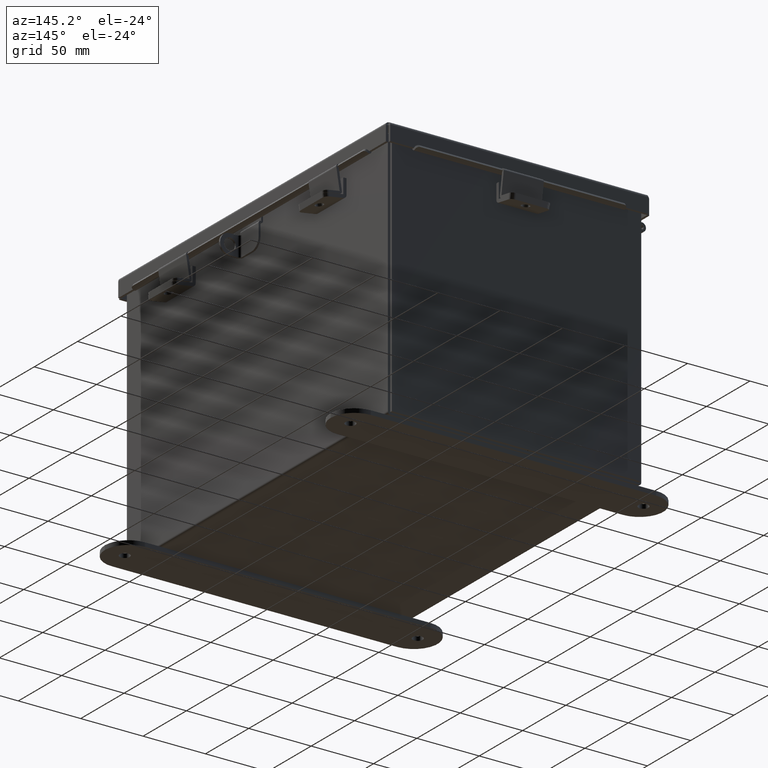
[diagram: clean part render]
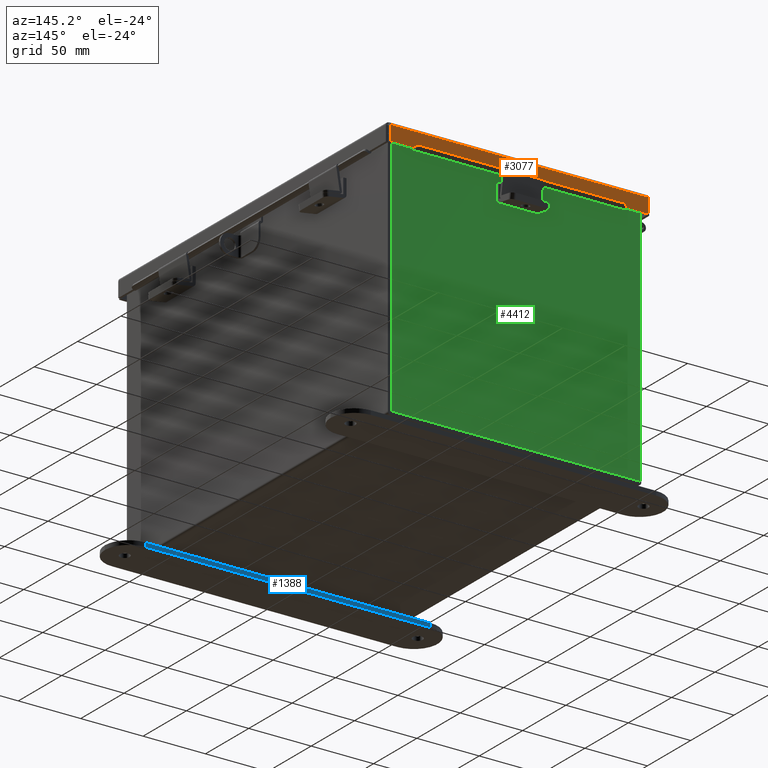
[diagram: same view with three faces highlighted in distinct colors, each labeled with its STEP entity id]
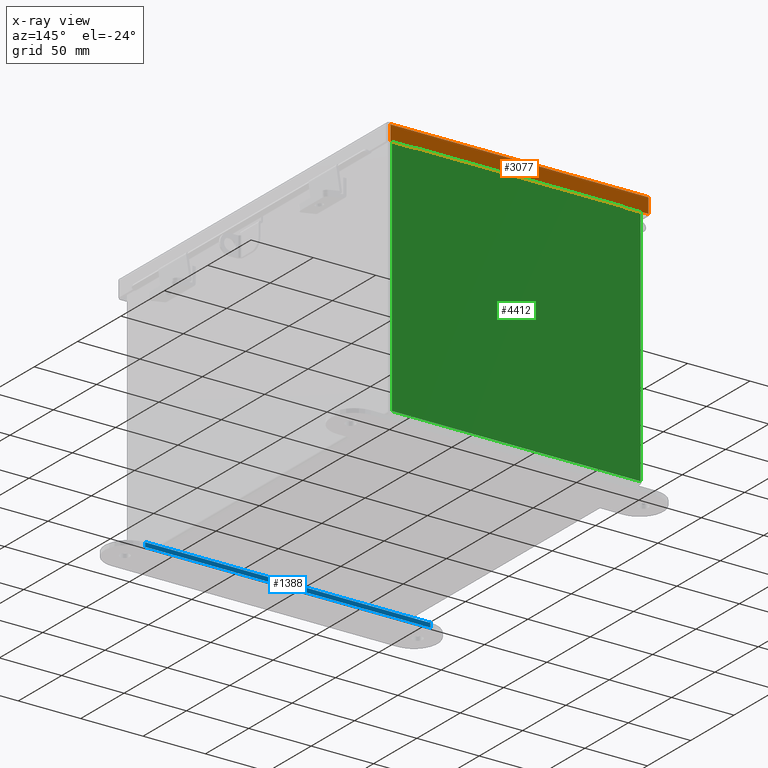
[diagram: x-ray of the same camera — body ghosted, the three highlighted faces saturated]
A machine part, auxiliary view with three faces highlighted in distinct colors.
The next image is the same camera in x-ray (body ghosted, the three faces saturated) — at least one of them is partly hidden behind the body in this view.
Their STEP definitions:

[orange] entity #3077 — the highlighted planar face has unit normal (-0, -1, -0).
#496 = PLANE ( 'NONE',  #4504 ) ;
#1160 = CARTESIAN_POINT ( 'NONE',  ( 4.074478932188155200, 6.156249999999999100, 0.01300000000000010700 ) ) ;
#1179 = VERTEX_POINT ( 'NONE', #1160 ) ;
#1205 = CARTESIAN_POINT ( 'NONE',  ( -3.324478932188148100, 6.156250000000000900, 0.4717115427318789300 ) ) ;
#1327 = CARTESIAN_POINT ( 'NONE',  ( 3.324478932188144500, 6.156250000000000900, 0.4873000000000000100 ) ) ;
#1481 = CARTESIAN_POINT ( 'NONE',  ( 3.324478932188144500, 6.156250000000002700, 0.4872999999999989000 ) ) ;
#1525 = CARTESIAN_POINT ( 'NONE',  ( 1.493979371535143800E-017, 6.156250000000000900, 0.4873000000000000100 ) ) ;
#1771 = LINE ( 'NONE', #12547, #14384 ) ;
#1856 = EDGE_CURVE ( 'NONE', #13005, #8044, #10748, .T. ) ;
#1928 = FACE_OUTER_BOUND ( 'NONE', #8433, .T. ) ;
#1987 = CARTESIAN_POINT ( 'NONE',  ( 4.074478932188154300, 6.156249999999999100, 0.0000000000000000000 ) ) ;
#2656 = EDGE_CURVE ( 'NONE', #2686, #1179, #13797, .T. ) ;
#2686 = VERTEX_POINT ( 'NONE', #5080 ) ;
#2876 = ORIENTED_EDGE ( 'NONE', *, *, #7188, .F. ) ;
#3077 = ADVANCED_FACE ( 'NONE', ( #1928 ), #496, .F. ) ;
#3511 = VECTOR ( 'NONE', #4077, 39.37007874015748100 ) ;
#3817 = DIRECTION ( 'NONE',  ( 1.000000000000000000, -1.078082683966195600E-030, 1.183291357831513000E-030 ) ) ;
#3977 = ORIENTED_EDGE ( 'NONE', *, *, #1856, .F. ) ;
#4077 = DIRECTION ( 'NONE',  ( 1.000000000000000000, -1.054499497617235000E-030, 8.216084191472640000E-018 ) ) ;
#4202 = DIRECTION ( 'NONE',  ( 1.075799537493479900E-030, -1.000000000000000000, 4.484872552701411700E-015 ) ) ;
#4442 = VECTOR ( 'NONE', #3817, 39.37007874015748100 ) ;
#4504 = AXIS2_PLACEMENT_3D ( 'NONE', #6545, #4202, #12716 ) ;
#5080 = CARTESIAN_POINT ( 'NONE',  ( -4.074478932188156900, 6.156249999999999100, 0.01300000000000010700 ) ) ;
#5225 = VECTOR ( 'NONE', #13872, 39.37007874015748100 ) ;
#5599 = CARTESIAN_POINT ( 'NONE',  ( -4.074478932188157800, 6.156250000000000900, 0.4873000000000087800 ) ) ;
#5863 = DIRECTION ( 'NONE',  ( -1.000000000000000000, 1.053430780678039200E-030, -1.183291357831513000E-030 ) ) ;
#6019 = ORIENTED_EDGE ( 'NONE', *, *, #13304, .F. ) ;
#6071 = VECTOR ( 'NONE', #8073, 39.37007874015748100 ) ;
#6359 = EDGE_CURVE ( 'NONE', #10430, #15663, #7453, .T. ) ;
#6372 = LINE ( 'NONE', #1481, #12483 ) ;
#6470 = DIRECTION ( 'NONE',  ( -1.183291357831513000E-030, -7.009925220120719800E-014, 1.000000000000000000 ) ) ;
#6545 = CARTESIAN_POINT ( 'NONE',  ( 1.920830620545185200E-017, 6.156249999999999100, -2.731847993664263300E-014 ) ) ;
#6571 = CARTESIAN_POINT ( 'NONE',  ( 3.324478932188144500, 6.156250000000000900, 0.4717115427318789300 ) ) ;
#7188 = EDGE_CURVE ( 'NONE', #1179, #15663, #15815, .T. ) ;
#7453 = LINE ( 'NONE', #1525, #11079 ) ;
#8044 = VERTEX_POINT ( 'NONE', #1205 ) ;
#8073 = DIRECTION ( 'NONE',  ( -1.183291357831513000E-030, 4.484872552701411700E-015, 1.000000000000000000 ) ) ;
#8324 = CARTESIAN_POINT ( 'NONE',  ( 3.324478932188144500, 6.156250000000003600, 0.4717115427318789300 ) ) ;
#8433 = EDGE_LOOP ( 'NONE', ( #11827, #12604, #2876, #11591, #11616, #9327, #6019, #3977 ) ) ;
#8472 = LINE ( 'NONE', #9036, #5225 ) ;
#9036 = CARTESIAN_POINT ( 'NONE',  ( -4.074478932188157800, 6.156249999999999100, -2.731847993664263300E-014 ) ) ;
#9327 = ORIENTED_EDGE ( 'NONE', *, *, #12916, .T. ) ;
#9884 = CARTESIAN_POINT ( 'NONE',  ( 4.156250000000018700, 6.156249999999999100, 0.01300000000000010700 ) ) ;
#10052 = DIRECTION ( 'NONE',  ( 1.000000000000000000, -1.054499497617235000E-030, 8.216084191472640000E-018 ) ) ;
#10430 = VERTEX_POINT ( 'NONE', #1327 ) ;
#10510 = EDGE_CURVE ( 'NONE', #10430, #13005, #6372, .T. ) ;
#10748 = LINE ( 'NONE', #8324, #13621 ) ;
#11046 = CARTESIAN_POINT ( 'NONE',  ( -3.324478932188148500, 6.156250000000000900, 0.4873000000000000100 ) ) ;
#11079 = VECTOR ( 'NONE', #10052, 39.37007874015748100 ) ;
#11326 = CARTESIAN_POINT ( 'NONE',  ( 1.493979371535143800E-017, 6.156250000000000900, 0.4873000000000000100 ) ) ;
#11591 = ORIENTED_EDGE ( 'NONE', *, *, #2656, .F. ) ;
#11616 = ORIENTED_EDGE ( 'NONE', *, *, #13026, .T. ) ;
#11827 = ORIENTED_EDGE ( 'NONE', *, *, #10510, .F. ) ;
#12434 = DIRECTION ( 'NONE',  ( 7.888609052210088300E-031, 7.009925220120781700E-014, -1.000000000000000000 ) ) ;
#12483 = VECTOR ( 'NONE', #12434, 39.37007874015748100 ) ;
#12547 = CARTESIAN_POINT ( 'NONE',  ( -3.324478932188148100, 6.156250000000003600, 0.4717115427318789300 ) ) ;
#12604 = ORIENTED_EDGE ( 'NONE', *, *, #6359, .T. ) ;
#12716 = DIRECTION ( 'NONE',  ( 1.183291357831513000E-030, -4.484872552701411700E-015, -1.000000000000000000 ) ) ;
#12865 = LINE ( 'NONE', #11326, #3511 ) ;
#12916 = EDGE_CURVE ( 'NONE', #15813, #13697, #12865, .T. ) ;
#13005 = VERTEX_POINT ( 'NONE', #6571 ) ;
#13026 = EDGE_CURVE ( 'NONE', #2686, #15813, #8472, .T. ) ;
#13304 = EDGE_CURVE ( 'NONE', #8044, #13697, #1771, .T. ) ;
#13621 = VECTOR ( 'NONE', #5863, 39.37007874015748100 ) ;
#13697 = VERTEX_POINT ( 'NONE', #11046 ) ;
#13797 = LINE ( 'NONE', #9884, #4442 ) ;
#13872 = DIRECTION ( 'NONE',  ( -1.183291357831513000E-030, 4.484872552701411700E-015, 1.000000000000000000 ) ) ;
#14384 = VECTOR ( 'NONE', #6470, 39.37007874015748100 ) ;
#15105 = CARTESIAN_POINT ( 'NONE',  ( 4.074478932188154300, 6.156250000000000900, 0.4873000000000000100 ) ) ;
#15663 = VERTEX_POINT ( 'NONE', #15105 ) ;
#15813 = VERTEX_POINT ( 'NONE', #5599 ) ;
#15815 = LINE ( 'NONE', #1987, #6071 ) ;

[blue] entity #1388 — the highlighted planar face has unit normal (-0, 1, 0).
#220 = LINE ( 'NONE', #13798, #3863 ) ;
#906 = VERTEX_POINT ( 'NONE', #7838 ) ;
#999 = LINE ( 'NONE', #8249, #4632 ) ;
#1189 = VECTOR ( 'NONE', #10514, 39.37007874015748100 ) ;
#1388 = ADVANCED_FACE ( 'NONE', ( #13810 ), #1585, .T. ) ;
#1585 = PLANE ( 'NONE',  #11330 ) ;
#1646 = VERTEX_POINT ( 'NONE', #2998 ) ;
#1830 = CARTESIAN_POINT ( 'NONE',  ( -4.499999999999999100, 1.162094064949612300, 0.0000000000000000000 ) ) ;
#2014 = VECTOR ( 'NONE', #11909, 39.37007874015748100 ) ;
#2412 = EDGE_CURVE ( 'NONE', #906, #15414, #999, .T. ) ;
#2810 = DIRECTION ( 'NONE',  ( -1.000000000000000000, -1.214154663850783900E-016, 0.0000000000000000000 ) ) ;
#2998 = CARTESIAN_POINT ( 'NONE',  ( 4.499999999999999100, 1.162094064949613400, 0.0000000000000000000 ) ) ;
#3688 = CARTESIAN_POINT ( 'NONE',  ( -4.499999999999999100, 1.162094064949612300, -0.1345000000000000100 ) ) ;
#3863 = VECTOR ( 'NONE', #6475, 39.37007874015748100 ) ;
#4047 = ORIENTED_EDGE ( 'NONE', *, *, #5457, .F. ) ;
#4387 = EDGE_LOOP ( 'NONE', ( #10813, #4047, #9713, #7010 ) ) ;
#4397 = CARTESIAN_POINT ( 'NONE',  ( -4.499999999999999100, 1.162094064949612300, -0.1345000000000000100 ) ) ;
#4632 = VECTOR ( 'NONE', #15543, 39.37007874015748100 ) ;
#5222 = CARTESIAN_POINT ( 'NONE',  ( -4.499999999999999100, 1.162094064949612300, -0.1345000000000000100 ) ) ;
#5457 = EDGE_CURVE ( 'NONE', #906, #1646, #220, .T. ) ;
#6013 = LINE ( 'NONE', #10688, #2014 ) ;
#6475 = DIRECTION ( 'NONE',  ( 0.0000000000000000000, 0.0000000000000000000, 1.000000000000000000 ) ) ;
#6555 = VERTEX_POINT ( 'NONE', #1830 ) ;
#7010 = ORIENTED_EDGE ( 'NONE', *, *, #15152, .T. ) ;
#7838 = CARTESIAN_POINT ( 'NONE',  ( 4.499999999999999100, 1.162094064949613400, -0.1345000000000000100 ) ) ;
#8249 = CARTESIAN_POINT ( 'NONE',  ( -4.499999999999999100, 1.162094064949612300, -0.1345000000000000100 ) ) ;
#9713 = ORIENTED_EDGE ( 'NONE', *, *, #2412, .T. ) ;
#10122 = DIRECTION ( 'NONE',  ( -1.214154663850783900E-016, 1.000000000000000000, 0.0000000000000000000 ) ) ;
#10514 = DIRECTION ( 'NONE',  ( 0.0000000000000000000, 0.0000000000000000000, 1.000000000000000000 ) ) ;
#10688 = CARTESIAN_POINT ( 'NONE',  ( -4.499999999999999100, 1.162094064949612300, 0.0000000000000000000 ) ) ;
#10813 = ORIENTED_EDGE ( 'NONE', *, *, #11498, .F. ) ;
#10929 = LINE ( 'NONE', #4397, #1189 ) ;
#11330 = AXIS2_PLACEMENT_3D ( 'NONE', #5222, #10122, #2810 ) ;
#11498 = EDGE_CURVE ( 'NONE', #1646, #6555, #6013, .T. ) ;
#11909 = DIRECTION ( 'NONE',  ( -1.000000000000000000, -1.214154663850783900E-016, -0.0000000000000000000 ) ) ;
#13798 = CARTESIAN_POINT ( 'NONE',  ( 4.499999999999999100, 1.162094064949613400, -0.1345000000000000100 ) ) ;
#13810 = FACE_OUTER_BOUND ( 'NONE', #4387, .T. ) ;
#15152 = EDGE_CURVE ( 'NONE', #15414, #6555, #10929, .T. ) ;
#15414 = VERTEX_POINT ( 'NONE', #3688 ) ;
#15543 = DIRECTION ( 'NONE',  ( -1.000000000000000000, -1.214154663850783900E-016, -0.0000000000000000000 ) ) ;

[green] entity #4412 — the highlighted planar face has unit normal (0, -1, 0).
#29 = EDGE_CURVE ( 'NONE', #1683, #4009, #11943, .T. ) ;
#160 = VERTEX_POINT ( 'NONE', #8130 ) ;
#224 = DIRECTION ( 'NONE',  ( 0.0000000000000000000, 0.0000000000000000000, -1.000000000000000000 ) ) ;
#262 = VECTOR ( 'NONE', #6584, 39.37007874015748100 ) ;
#313 = CARTESIAN_POINT ( 'NONE',  ( -3.925300000000000500, 0.0000000000000000000, 3.925299999999999100 ) ) ;
#367 = ORIENTED_EDGE ( 'NONE', *, *, #5376, .T. ) ;
#541 = DIRECTION ( 'NONE',  ( 0.0000000000000000000, 0.0000000000000000000, 1.000000000000000000 ) ) ;
#644 = VECTOR ( 'NONE', #6404, 39.37007874015748100 ) ;
#650 = EDGE_CURVE ( 'NONE', #14463, #160, #7139, .T. ) ;
#905 = DIRECTION ( 'NONE',  ( 0.0000000000000000000, 0.0000000000000000000, -1.000000000000000000 ) ) ;
#941 = ORIENTED_EDGE ( 'NONE', *, *, #11771, .T. ) ;
#1041 = CARTESIAN_POINT ( 'NONE',  ( 3.582299999999999200, 0.0000000000000000000, 3.912299999999999200 ) ) ;
#1187 = CARTESIAN_POINT ( 'NONE',  ( -3.582300000000000000, 1.092739197465705300E-015, 3.912299999999999200 ) ) ;
#1586 = EDGE_CURVE ( 'NONE', #12753, #1683, #5773, .T. ) ;
#1683 = VERTEX_POINT ( 'NONE', #5446 ) ;
#1776 = CARTESIAN_POINT ( 'NONE',  ( -3.582300000000000000, 1.092739197465705300E-015, 3.912299999999999200 ) ) ;
#2344 = LINE ( 'NONE', #9447, #15332 ) ;
#2560 = CARTESIAN_POINT ( 'NONE',  ( 3.619649999999999100, 0.0000000000000000000, 3.874949999999999200 ) ) ;
#2628 = CARTESIAN_POINT ( 'NONE',  ( 3.619649999999915200, 0.0000000000000000000, -7.867722221753078700E-014 ) ) ;
#2683 = EDGE_CURVE ( 'NONE', #15608, #12753, #10532, .T. ) ;
#2805 = ORIENTED_EDGE ( 'NONE', *, *, #1586, .F. ) ;
#2985 = AXIS2_PLACEMENT_3D ( 'NONE', #5455, #14007, #6697 ) ;
#3027 = ORIENTED_EDGE ( 'NONE', *, *, #12896, .T. ) ;
#3741 = VECTOR ( 'NONE', #11114, 39.37007874015748100 ) ;
#3878 = DIRECTION ( 'NONE',  ( 1.000000000000000000, 0.0000000000000000000, 0.0000000000000000000 ) ) ;
#4009 = VERTEX_POINT ( 'NONE', #1041 ) ;
#4011 = ORIENTED_EDGE ( 'NONE', *, *, #13520, .T. ) ;
#4224 = ORIENTED_EDGE ( 'NONE', *, *, #4500, .F. ) ;
#4352 = ORIENTED_EDGE ( 'NONE', *, *, #12701, .T. ) ;
#4412 = ADVANCED_FACE ( 'NONE', ( #13624 ), #6633, .F. ) ;
#4500 = EDGE_CURVE ( 'NONE', #12005, #6101, #15716, .T. ) ;
#4678 = CARTESIAN_POINT ( 'NONE',  ( -3.619650000000000500, 0.0000000000000000000, 3.874949999999999200 ) ) ;
#4779 = VERTEX_POINT ( 'NONE', #12199 ) ;
#5376 = EDGE_CURVE ( 'NONE', #15608, #13028, #13980, .T. ) ;
#5446 = CARTESIAN_POINT ( 'NONE',  ( 3.582299999999999200, 0.0000000000000000000, 3.874949999999999200 ) ) ;
#5455 = CARTESIAN_POINT ( 'NONE',  ( 0.0000000000000000000, 0.0000000000000000000, 0.0000000000000000000 ) ) ;
#5742 = DIRECTION ( 'NONE',  ( -1.000000000000000000, -0.0000000000000000000, -0.0000000000000000000 ) ) ;
#5773 = CIRCLE ( 'NONE', #7150, 0.01867500000000003900 ) ;
#5831 = VECTOR ( 'NONE', #541, 39.37007874015748100 ) ;
#6101 = VERTEX_POINT ( 'NONE', #4678 ) ;
#6173 = VECTOR ( 'NONE', #9776, 39.37007874015748100 ) ;
#6404 = DIRECTION ( 'NONE',  ( -0.0000000000000000000, -0.0000000000000000000, 1.000000000000000000 ) ) ;
#6448 = EDGE_LOOP ( 'NONE', ( #12733, #4224, #12925, #4352, #14366, #2805, #15021, #367, #4011, #941, #3027, #15324 ) ) ;
#6584 = DIRECTION ( 'NONE',  ( 1.000000000000000000, 0.0000000000000000000, 0.0000000000000000000 ) ) ;
#6633 = PLANE ( 'NONE',  #2985 ) ;
#6697 = DIRECTION ( 'NONE',  ( 0.0000000000000000000, -0.0000000000000000000, -1.000000000000000000 ) ) ;
#6870 = CARTESIAN_POINT ( 'NONE',  ( -3.600975000000000000, 0.0000000000000000000, 3.874949999999999200 ) ) ;
#6986 = LINE ( 'NONE', #7436, #3741 ) ;
#7101 = VERTEX_POINT ( 'NONE', #1776 ) ;
#7139 = LINE ( 'NONE', #15129, #262 ) ;
#7150 = AXIS2_PLACEMENT_3D ( 'NONE', #14845, #7527, #224 ) ;
#7301 = VECTOR ( 'NONE', #9950, 39.37007874015748100 ) ;
#7436 = CARTESIAN_POINT ( 'NONE',  ( -3.582300000000000000, 0.0000000000000000000, 0.0000000000000000000 ) ) ;
#7527 = DIRECTION ( 'NONE',  ( -0.0000000000000000000, 1.000000000000000000, -0.0000000000000000000 ) ) ;
#8097 = DIRECTION ( 'NONE',  ( 0.0000000000000000000, 0.0000000000000000000, -1.000000000000000000 ) ) ;
#8130 = CARTESIAN_POINT ( 'NONE',  ( -3.619650000000000500, 0.0000000000000000000, 3.925299999999999100 ) ) ;
#8635 = VECTOR ( 'NONE', #3878, 39.37007874015748100 ) ;
#8697 = DIRECTION ( 'NONE',  ( 0.0000000000000000000, 0.0000000000000000000, 1.000000000000000000 ) ) ;
#8706 = EDGE_CURVE ( 'NONE', #7101, #12005, #6986, .T. ) ;
#8707 = AXIS2_PLACEMENT_3D ( 'NONE', #6870, #15397, #8097 ) ;
#8827 = VECTOR ( 'NONE', #8697, 39.37007874015748100 ) ;
#8906 = CARTESIAN_POINT ( 'NONE',  ( 3.619650000000000500, 0.0000000000000000000, 3.925299999999999100 ) ) ;
#9427 = LINE ( 'NONE', #1187, #6173 ) ;
#9447 = CARTESIAN_POINT ( 'NONE',  ( 3.925299999999999100, 0.0000000000000000000, 3.925299999999999100 ) ) ;
#9776 = DIRECTION ( 'NONE',  ( 1.000000000000000000, 0.0000000000000000000, 0.0000000000000000000 ) ) ;
#9950 = DIRECTION ( 'NONE',  ( -2.170286390199978800E-014, 0.0000000000000000000, -1.000000000000000000 ) ) ;
#10003 = LINE ( 'NONE', #313, #644 ) ;
#10532 = LINE ( 'NONE', #2628, #7301 ) ;
#10940 = CARTESIAN_POINT ( 'NONE',  ( -3.925300000000000500, 0.0000000000000000000, -3.925300000000000500 ) ) ;
#11114 = DIRECTION ( 'NONE',  ( 0.0000000000000000000, 0.0000000000000000000, -1.000000000000000000 ) ) ;
#11168 = CARTESIAN_POINT ( 'NONE',  ( -3.925300000000000500, 0.0000000000000000000, 3.925299999999999100 ) ) ;
#11169 = VECTOR ( 'NONE', #5742, 39.37007874015748100 ) ;
#11548 = LINE ( 'NONE', #11815, #11169 ) ;
#11771 = EDGE_CURVE ( 'NONE', #4779, #15407, #11548, .T. ) ;
#11815 = CARTESIAN_POINT ( 'NONE',  ( -3.925300000000000500, 0.0000000000000000000, -3.925300000000000500 ) ) ;
#11943 = LINE ( 'NONE', #13996, #5831 ) ;
#12005 = VERTEX_POINT ( 'NONE', #13432 ) ;
#12071 = LINE ( 'NONE', #12379, #8827 ) ;
#12199 = CARTESIAN_POINT ( 'NONE',  ( 3.925299999999999100, 0.0000000000000000000, -3.925300000000000500 ) ) ;
#12379 = CARTESIAN_POINT ( 'NONE',  ( -3.619650000000000500, 0.0000000000000000000, 0.0000000000000000000 ) ) ;
#12701 = EDGE_CURVE ( 'NONE', #7101, #4009, #9427, .T. ) ;
#12733 = ORIENTED_EDGE ( 'NONE', *, *, #15528, .F. ) ;
#12753 = VERTEX_POINT ( 'NONE', #2560 ) ;
#12896 = EDGE_CURVE ( 'NONE', #15407, #14463, #10003, .T. ) ;
#12925 = ORIENTED_EDGE ( 'NONE', *, *, #8706, .F. ) ;
#13028 = VERTEX_POINT ( 'NONE', #13935 ) ;
#13432 = CARTESIAN_POINT ( 'NONE',  ( -3.582300000000000000, 0.0000000000000000000, 3.874949999999999200 ) ) ;
#13520 = EDGE_CURVE ( 'NONE', #13028, #4779, #2344, .T. ) ;
#13602 = CARTESIAN_POINT ( 'NONE',  ( -3.925300000000000500, 0.0000000000000000000, 3.925299999999999100 ) ) ;
#13624 = FACE_OUTER_BOUND ( 'NONE', #6448, .T. ) ;
#13935 = CARTESIAN_POINT ( 'NONE',  ( 3.925299999999999100, 0.0000000000000000000, 3.925299999999999100 ) ) ;
#13980 = LINE ( 'NONE', #11168, #8635 ) ;
#13996 = CARTESIAN_POINT ( 'NONE',  ( 3.582299999999999200, 0.0000000000000000000, 0.0000000000000000000 ) ) ;
#14007 = DIRECTION ( 'NONE',  ( 0.0000000000000000000, -1.000000000000000000, 0.0000000000000000000 ) ) ;
#14366 = ORIENTED_EDGE ( 'NONE', *, *, #29, .F. ) ;
#14463 = VERTEX_POINT ( 'NONE', #13602 ) ;
#14845 = CARTESIAN_POINT ( 'NONE',  ( 3.600974999999999100, 0.0000000000000000000, 3.874949999999999200 ) ) ;
#15021 = ORIENTED_EDGE ( 'NONE', *, *, #2683, .F. ) ;
#15129 = CARTESIAN_POINT ( 'NONE',  ( -3.925300000000000500, 0.0000000000000000000, 3.925299999999999100 ) ) ;
#15324 = ORIENTED_EDGE ( 'NONE', *, *, #650, .T. ) ;
#15332 = VECTOR ( 'NONE', #905, 39.37007874015748100 ) ;
#15397 = DIRECTION ( 'NONE',  ( -0.0000000000000000000, 1.000000000000000000, -0.0000000000000000000 ) ) ;
#15407 = VERTEX_POINT ( 'NONE', #10940 ) ;
#15528 = EDGE_CURVE ( 'NONE', #6101, #160, #12071, .T. ) ;
#15608 = VERTEX_POINT ( 'NONE', #8906 ) ;
#15716 = CIRCLE ( 'NONE', #8707, 0.01867500000000003900 ) ;